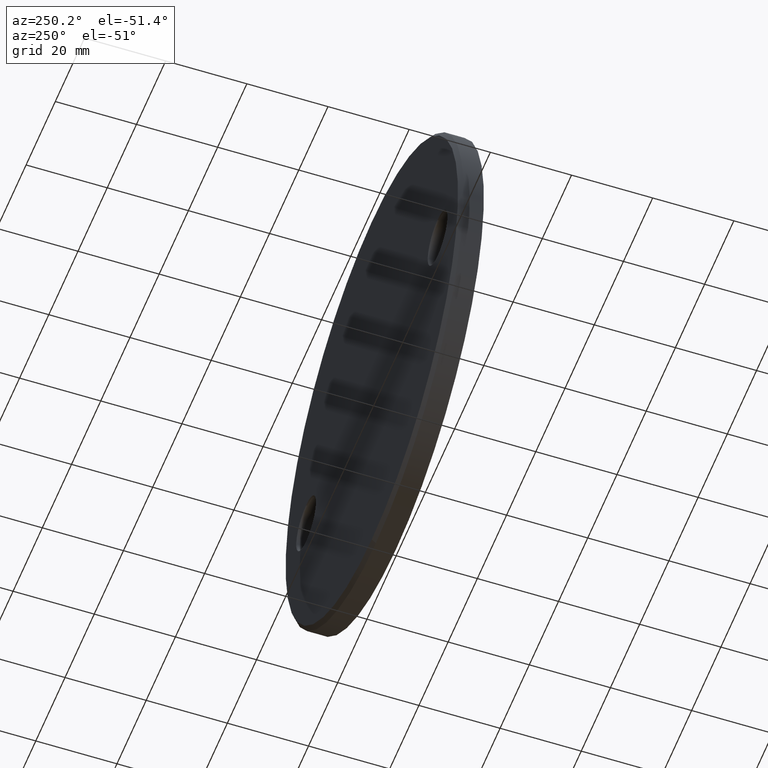
[diagram: clean part render]
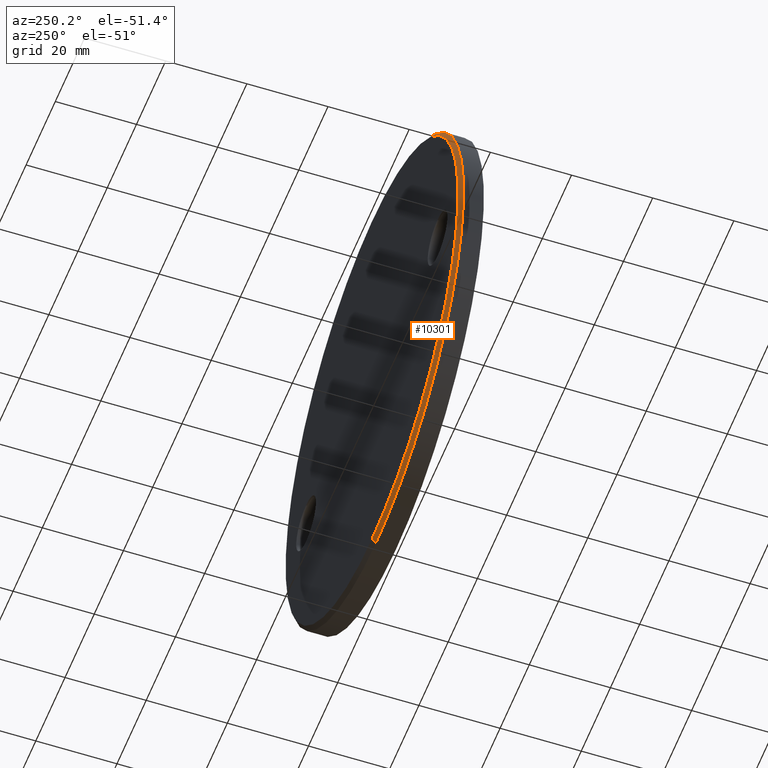
[diagram: same view with one face highlighted and labeled with its STEP entity id]
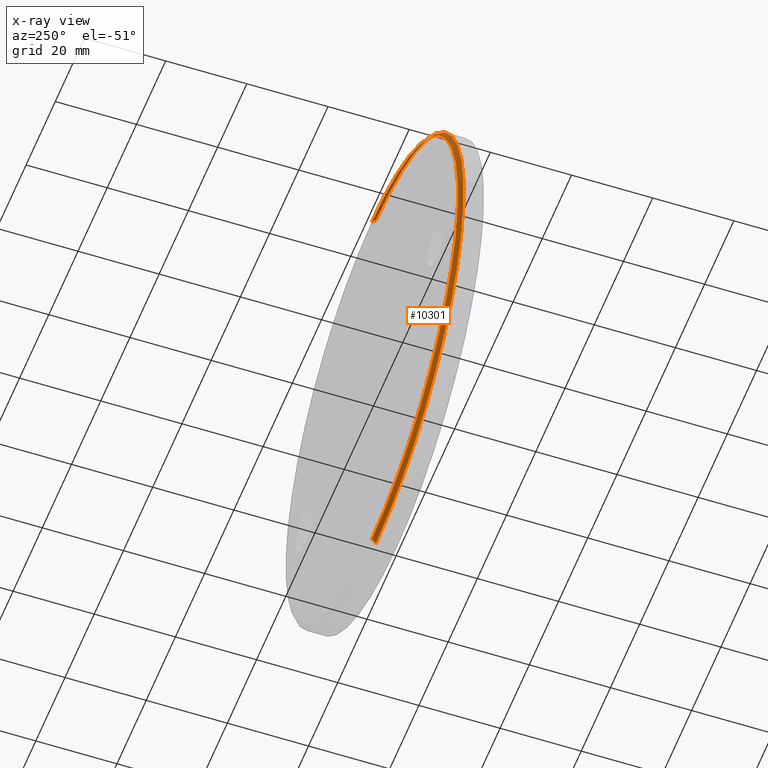
[diagram: x-ray of the same camera — body ghosted, the highlighted face saturated]
A machine part, auxiliary view. The second image highlights one B-rep face of the part: STEP entity #10301.
The next image is the same camera in x-ray: the body ghosted, the highlighted face saturated — about 0% of this face is hidden behind the body in this view.
In plain terms, the highlighted conical surface has half-angle 45 deg.
Its self-contained STEP definition (entity closure, byte-faithful):
#270 = DIRECTION ( 'NONE',  ( 0.000000000000000000, -1.000000000000000000, 0.000000000000000000 ) ) ;
#337 = ORIENTED_EDGE ( 'NONE', *, *, #12555, .F. ) ;
#513 = AXIS2_PLACEMENT_3D ( 'NONE', #9260, #10315, #6996 ) ;
#557 = CIRCLE ( 'NONE', #513, 58.99999999999998579 ) ;
#856 = DIRECTION ( 'NONE',  ( 0.000000000000000000, 0.000000000000000000, 1.000000000000000000 ) ) ;
#2150 = VERTEX_POINT ( 'NONE', #11498 ) ;
#2452 = CARTESIAN_POINT ( 'NONE',  ( 7.347880794884118356E-15, 4.999999999999971578, 60.00000000000000000 ) ) ;
#2782 = AXIS2_PLACEMENT_3D ( 'NONE', #6682, #270, #8748 ) ;
#2868 = LINE ( 'NONE', #7333, #9390 ) ;
#3201 = CARTESIAN_POINT ( 'NONE',  ( 0.000000000000000000, 6.000000000000000000, -58.99999999999998579 ) ) ;
#3713 = ORIENTED_EDGE ( 'NONE', *, *, #4587, .F. ) ;
#4497 = VERTEX_POINT ( 'NONE', #2452 ) ;
#4587 = EDGE_CURVE ( 'NONE', #4497, #5758, #11359, .T. ) ;
#4744 = EDGE_LOOP ( 'NONE', ( #5636, #337, #7240, #3713 ) ) ;
#5216 = EDGE_CURVE ( 'NONE', #2150, #5758, #6681, .T. ) ;
#5636 = ORIENTED_EDGE ( 'NONE', *, *, #8044, .F. ) ;
#5758 = VERTEX_POINT ( 'NONE', #13012 ) ;
#6681 = LINE ( 'NONE', #3201, #7677 ) ;
#6682 = CARTESIAN_POINT ( 'NONE',  ( 0.000000000000000000, 6.000000000000000000, 0.000000000000000000 ) ) ;
#6996 = DIRECTION ( 'NONE',  ( 0.000000000000000000, 0.000000000000000000, 1.000000000000000000 ) ) ;
#7080 = DIRECTION ( 'NONE',  ( 0.000000000000000000, -1.000000000000000000, 0.000000000000000000 ) ) ;
#7240 = ORIENTED_EDGE ( 'NONE', *, *, #5216, .T. ) ;
#7333 = CARTESIAN_POINT ( 'NONE',  ( 7.225416114969381630E-15, 6.000000000000000000, 58.99999999999998579 ) ) ;
#7402 = FACE_OUTER_BOUND ( 'NONE', #4744, .T. ) ;
#7677 = VECTOR ( 'NONE', #10644, 1000.000000000000000 ) ;
#8044 = EDGE_CURVE ( 'NONE', #12027, #4497, #2868, .T. ) ;
#8260 = DIRECTION ( 'NONE',  ( 8.659560562354874926E-17, -0.7071067811865524577, 0.7071067811865426878 ) ) ;
#8748 = DIRECTION ( 'NONE',  ( 0.000000000000000000, 0.000000000000000000, -1.000000000000000000 ) ) ;
#8893 = AXIS2_PLACEMENT_3D ( 'NONE', #9252, #7080, #856 ) ;
#9252 = CARTESIAN_POINT ( 'NONE',  ( 0.000000000000000000, 4.999999999999971578, 0.000000000000000000 ) ) ;
#9260 = CARTESIAN_POINT ( 'NONE',  ( 0.000000000000000000, 6.000000000000000000, 0.000000000000000000 ) ) ;
#9390 = VECTOR ( 'NONE', #8260, 1000.000000000000000 ) ;
#10301 = ADVANCED_FACE ( 'NONE', ( #7402 ), #10921, .T. ) ;
#10315 = DIRECTION ( 'NONE',  ( 0.000000000000000000, 1.000000000000000000, 0.000000000000000000 ) ) ;
#10644 = DIRECTION ( 'NONE',  ( 0.000000000000000000, -0.7071067811865524577, -0.7071067811865426878 ) ) ;
#10707 = CARTESIAN_POINT ( 'NONE',  ( 7.286648454926750781E-15, 6.000000000000000000, 58.99999999999998579 ) ) ;
#10921 = CONICAL_SURFACE ( 'NONE', #2782, 58.99999999999998579, 0.7853981633974415066 ) ;
#11359 = CIRCLE ( 'NONE', #8893, 60.00000000000000000 ) ;
#11498 = CARTESIAN_POINT ( 'NONE',  ( 0.000000000000000000, 6.000000000000000000, -58.99999999999998579 ) ) ;
#12027 = VERTEX_POINT ( 'NONE', #10707 ) ;
#12555 = EDGE_CURVE ( 'NONE', #2150, #12027, #557, .T. ) ;
#13012 = CARTESIAN_POINT ( 'NONE',  ( 0.000000000000000000, 4.999999999999971578, -60.00000000000000000 ) ) ;